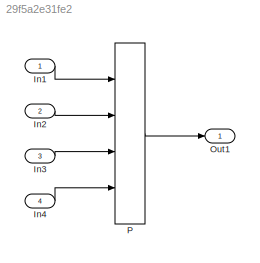
MODEL slx_29f5a2e31fe2
KIND model
CONFIG AbsTol = auto
CONFIG EnableMultiTasking = off
CONFIG FixedStep = auto
CONFIG MaxStep = auto
CONFIG MinStep = auto
CONFIG RelTol = 1e-3
CONFIG SampleTimeConstraint = Unconstrained
CONFIG Solver = FixedStepDiscrete
CONFIG SolverName = FixedStepDiscrete
CONFIG StartTime = 0.0
CONFIG StopTime = 10.0
BLOCK [Inport] In1
  IconDisplay = Port number
  OutDataTypeStr = int16
  PortDimensions = [3 4 5]
BLOCK [Inport] In2
  IconDisplay = Port number
  OutDataTypeStr = int16
  Port = 2
  PortDimensions = [3 4 5]
BLOCK [Inport] In3
  IconDisplay = Port number
  OutDataTypeStr = int16
  Port = 3
  PortDimensions = [3 4 5]
BLOCK [Inport] In4
  IconDisplay = Port number
  OutDataTypeStr = int16
  Port = 4
  PortDimensions = [3 4 5]
BLOCK [Outport] Out1
  IconDisplay = Port number
BLOCK [Concatenate] P
  Mode = Multidimensional array
  NumInputs = 4
  Ports = [4, 1]
LINE In1:1 -> P:1
LINE In2:1 -> P:2
LINE In3:1 -> P:3
LINE In4:1 -> P:4
LINE P:1 -> Out1:1
